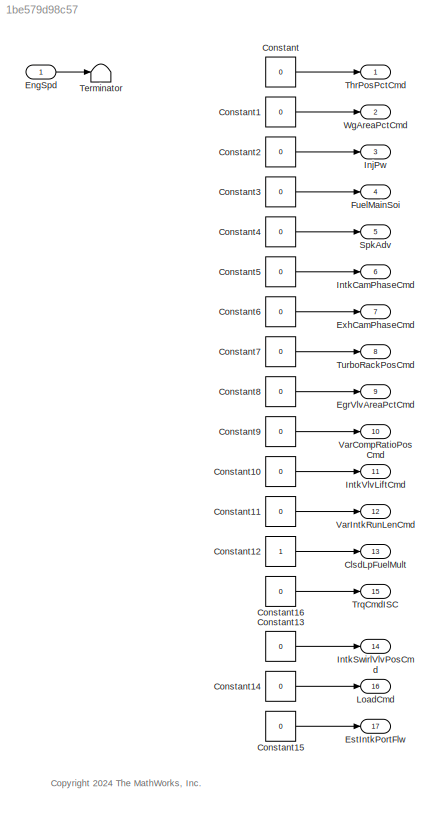
MODEL slx_1be579d98c57
KIND model
CONFIG AbsTol = auto
CONFIG EnableMultiTasking = off
CONFIG FixedStep = auto
CONFIG MaxStep = auto
CONFIG MinStep = auto
CONFIG RelTol = 1e-3
CONFIG SampleTimeConstraint = Unconstrained
CONFIG SolverName = VariableStepAuto
CONFIG StartTime = 0.0
CONFIG StopTime = 10.0
BLOCK [Outport] ClsdLpFuelMult
  Port = 13
  VectorParamsAs1DForOutWhenUnconnected = off
BLOCK [Constant] Constant
  SampleTime = -1
  Value = 0
BLOCK [Constant] Constant1
  SampleTime = -1
  Value = 0
BLOCK [Constant] Constant10
  SampleTime = -1
  Value = 0
BLOCK [Constant] Constant11
  SampleTime = -1
  Value = 0
BLOCK [Constant] Constant12
  SampleTime = -1
BLOCK [Constant] Constant13
  SampleTime = -1
  Value = 0
BLOCK [Constant] Constant14
  SampleTime = -1
  Value = 0
BLOCK [Constant] Constant15
  SampleTime = -1
  Value = 0
BLOCK [Constant] Constant16
  SampleTime = -1
  Value = 0
BLOCK [Constant] Constant2
  SampleTime = -1
  Value = 0
BLOCK [Constant] Constant3
  SampleTime = -1
  Value = 0
BLOCK [Constant] Constant4
  SampleTime = -1
  Value = 0
BLOCK [Constant] Constant5
  SampleTime = -1
  Value = 0
BLOCK [Constant] Constant6
  SampleTime = -1
  Value = 0
BLOCK [Constant] Constant7
  SampleTime = -1
  Value = 0
BLOCK [Constant] Constant8
  SampleTime = -1
  Value = 0
BLOCK [Constant] Constant9
  SampleTime = -1
  Value = 0
BLOCK [Outport] EgrVlvAreaPctCmd
  Port = 9
  Unit = %
  VectorParamsAs1DForOutWhenUnconnected = off
BLOCK [Inport] EngSpd
  Unit = rpm
BLOCK [Outport] EstIntkPortFlw
  Port = 17
  VectorParamsAs1DForOutWhenUnconnected = off
BLOCK [Outport] ExhCamPhaseCmd
  Port = 7
  VectorParamsAs1DForOutWhenUnconnected = off
BLOCK [Outport] FuelMainSoi
  Port = 4
  Unit = deg
  VectorParamsAs1DForOutWhenUnconnected = off
BLOCK [Outport] InjPw
  Port = 3
  SampleTime = 0.01
  VectorParamsAs1DForOutWhenUnconnected = off
BLOCK [Outport] IntkCamPhaseCmd
  Port = 6
  VectorParamsAs1DForOutWhenUnconnected = off
BLOCK [Outport] IntkSwirlVlvPosCmd
  Port = 14
  VectorParamsAs1DForOutWhenUnconnected = off
BLOCK [Outport] IntkVlvLiftCmd
  Port = 11
  VectorParamsAs1DForOutWhenUnconnected = off
BLOCK [Outport] LoadCmd
  Port = 16
  VectorParamsAs1DForOutWhenUnconnected = off
BLOCK [Outport] SpkAdv
  Port = 5
  VectorParamsAs1DForOutWhenUnconnected = off
BLOCK [Terminator] Terminator
BLOCK [Outport] ThrPosPctCmd
  VectorParamsAs1DForOutWhenUnconnected = off
BLOCK [Outport] TrqCmdISC
  Port = 15
  VectorParamsAs1DForOutWhenUnconnected = off
BLOCK [Outport] TurboRackPosCmd
  Port = 8
  Unit = 1
  VectorParamsAs1DForOutWhenUnconnected = off
BLOCK [Outport] VarCompRatioPosCmd
  Port = 10
  VectorParamsAs1DForOutWhenUnconnected = off
BLOCK [Outport] VarIntkRunLenCmd
  Port = 12
  VectorParamsAs1DForOutWhenUnconnected = off
BLOCK [Outport] WgAreaPctCmd
  Port = 2
  VectorParamsAs1DForOutWhenUnconnected = off
ANNOTATION (root): <copyright redacted>
LINE Constant10:1 -> IntkVlvLiftCmd:1
LINE Constant11:1 -> VarIntkRunLenCmd:1
LINE Constant12:1 -> ClsdLpFuelMult:1
LINE Constant13:1 -> IntkSwirlVlvPosCmd:1
LINE Constant14:1 -> LoadCmd:1
LINE Constant15:1 -> EstIntkPortFlw:1
LINE Constant16:1 -> TrqCmdISC:1
LINE Constant1:1 -> WgAreaPctCmd:1
LINE Constant2:1 -> InjPw:1
LINE Constant3:1 -> FuelMainSoi:1
LINE Constant4:1 -> SpkAdv:1
LINE Constant5:1 -> IntkCamPhaseCmd:1
LINE Constant6:1 -> ExhCamPhaseCmd:1
LINE Constant7:1 -> TurboRackPosCmd:1
LINE Constant8:1 -> EgrVlvAreaPctCmd:1
LINE Constant9:1 -> VarCompRatioPosCmd:1
LINE Constant:1 -> ThrPosPctCmd:1
LINE EngSpd:1 -> Terminator:1
